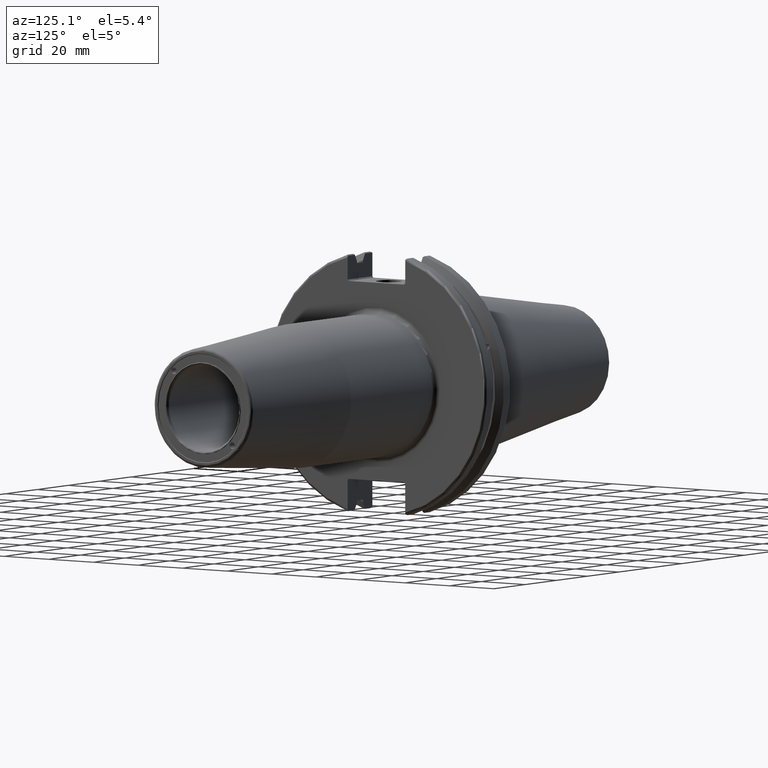
[diagram: clean part render]
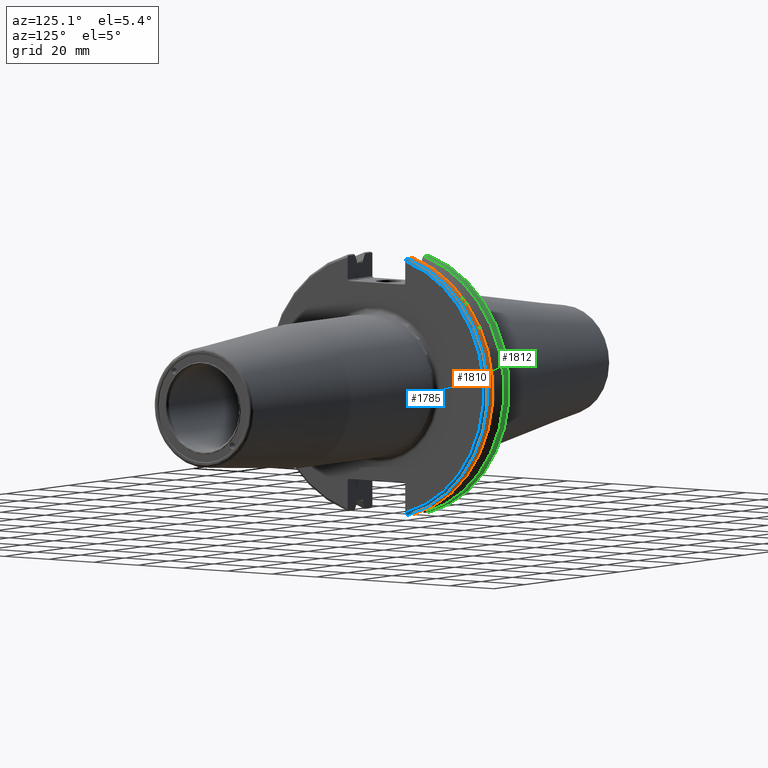
[diagram: same view with three faces highlighted in distinct colors, each labeled with its STEP entity id]
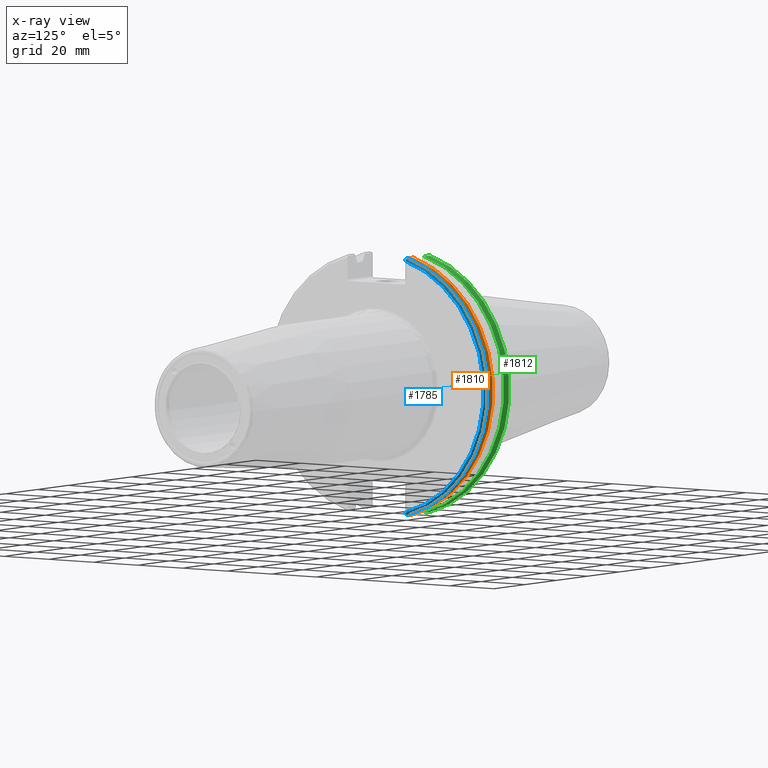
[diagram: x-ray of the same camera — body ghosted, the three highlighted faces saturated]
A machine part, auxiliary view with three faces highlighted in distinct colors.
The next image is the same camera in x-ray (body ghosted, the three faces saturated) — at least one of them is partly hidden behind the body in this view.
Their STEP definitions:

[orange] entity #1810 — the highlighted cylindrical surface (partial cylindrical patch) has radius 49.2125 mm, axis along (1, 0, 0).
#101=CYLINDRICAL_SURFACE('',#2031,49.2125);
#249=FACE_OUTER_BOUND('',#363,.T.);
#363=EDGE_LOOP('',(#1628,#1629,#1630,#1631));
#446=LINE('',#3382,#544);
#474=LINE('',#3582,#572);
#544=VECTOR('',#2421,10.);
#572=VECTOR('',#2523,10.);
#666=CIRCLE('',#1992,49.2125);
#681=CIRCLE('',#2032,49.2125);
#847=VERTEX_POINT('',#3356);
#848=VERTEX_POINT('',#3365);
#850=VERTEX_POINT('',#3378);
#883=VERTEX_POINT('',#3581);
#1081=EDGE_CURVE('',#847,#848,#666,.T.);
#1085=EDGE_CURVE('',#850,#847,#446,.T.);
#1145=EDGE_CURVE('',#848,#883,#474,.T.);
#1147=EDGE_CURVE('',#850,#883,#681,.T.);
#1628=ORIENTED_EDGE('',*,*,#1081,.F.);
#1629=ORIENTED_EDGE('',*,*,#1085,.F.);
#1630=ORIENTED_EDGE('',*,*,#1147,.T.);
#1631=ORIENTED_EDGE('',*,*,#1145,.F.);
#1810=ADVANCED_FACE('',(#249),#101,.T.);
#1992=AXIS2_PLACEMENT_3D('',#3366,#2416,#2417);
#2031=AXIS2_PLACEMENT_3D('',#3586,#2524,#2525);
#2032=AXIS2_PLACEMENT_3D('',#3587,#2526,#2527);
#2416=DIRECTION('center_axis',(1.,0.,0.));
#2417=DIRECTION('ref_axis',(0.,1.,-6.12323399573677E-17));
#2421=DIRECTION('',(1.,0.,0.));
#2523=DIRECTION('',(-1.,0.,0.));
#2524=DIRECTION('center_axis',(1.,0.,0.));
#2525=DIRECTION('ref_axis',(0.,1.,0.));
#2526=DIRECTION('center_axis',(1.,0.,0.));
#2527=DIRECTION('ref_axis',(0.,0.,-1.));
#3356=CARTESIAN_POINT('',(18.05,13.4317035994433,-47.3440544806494));
#3365=CARTESIAN_POINT('',(18.05,13.4317035994433,47.3440544806494));
#3366=CARTESIAN_POINT('Origin',(18.05,0.,0.));
#3378=CARTESIAN_POINT('',(14.6602090340487,13.4317035994433,-47.3440544806494));
#3382=CARTESIAN_POINT('',(16.8551045170244,13.4317035994433,-47.3440544806494));
#3581=CARTESIAN_POINT('',(14.6602090340487,13.4317035994433,47.3440544806494));
#3582=CARTESIAN_POINT('',(16.8551045170244,13.4317035994433,47.3440544806494));
#3586=CARTESIAN_POINT('Origin',(16.8551045170244,0.,0.));
#3587=CARTESIAN_POINT('Origin',(14.6602090340487,0.,0.));

[blue] entity #1785 — the highlighted toroidal blend (fillet) surface has major radius 48.2125 mm and minor (blend) radius 1 mm.
#53=B_SPLINE_CURVE_WITH_KNOTS('',3,(#3343,#3344,#3345,#3346,#3347,#3348),
 .UNSPECIFIED.,.F.,.F.,(4,2,4),(0.0976892167532868,0.112000071948293,0.150881870548587),
 .UNSPECIFIED.);
#54=B_SPLINE_CURVE_WITH_KNOTS('',3,(#3350,#3351,#3352,#3353,#3354,#3355),
 .UNSPECIFIED.,.F.,.F.,(4,2,4),(0.452859340315922,0.491741138916218,0.506051994111223),
 .UNSPECIFIED.);
#55=B_SPLINE_CURVE_WITH_KNOTS('',3,(#3357,#3358,#3359,#3360,#3361,#3362,
#3363,#3364),.UNSPECIFIED.,.F.,.F.,(4,2,2,4),(-0.104197480645881,-0.0778720357014994,
-0.0364336453281809,0.),.UNSPECIFIED.);
#56=B_SPLINE_CURVE_WITH_KNOTS('',3,(#3367,#3368,#3369,#3370,#3371,#3372,
#3373,#3374),.UNSPECIFIED.,.F.,.F.,(4,2,2,4),(0.,0.0364336453281816,0.0778720357014993,
0.104197480645882),.UNSPECIFIED.);
#73=TOROIDAL_SURFACE('',#1991,48.2125,1.);
#224=FACE_OUTER_BOUND('',#337,.T.);
#337=EDGE_LOOP('',(#1482,#1483,#1484,#1485,#1486,#1487));
#616=CIRCLE('',#1907,48.2125);
#666=CIRCLE('',#1992,49.2125);
#736=VERTEX_POINT('',#2707);
#737=VERTEX_POINT('',#2708);
#845=VERTEX_POINT('',#3342);
#846=VERTEX_POINT('',#3349);
#847=VERTEX_POINT('',#3356);
#848=VERTEX_POINT('',#3365);
#945=EDGE_CURVE('',#736,#737,#616,.T.);
#1078=EDGE_CURVE('',#845,#736,#53,.T.);
#1079=EDGE_CURVE('',#737,#846,#54,.T.);
#1080=EDGE_CURVE('',#846,#847,#55,.T.);
#1081=EDGE_CURVE('',#847,#848,#666,.T.);
#1082=EDGE_CURVE('',#848,#845,#56,.T.);
#1482=ORIENTED_EDGE('',*,*,#1078,.T.);
#1483=ORIENTED_EDGE('',*,*,#945,.T.);
#1484=ORIENTED_EDGE('',*,*,#1079,.T.);
#1485=ORIENTED_EDGE('',*,*,#1080,.T.);
#1486=ORIENTED_EDGE('',*,*,#1081,.T.);
#1487=ORIENTED_EDGE('',*,*,#1082,.T.);
#1785=ADVANCED_FACE('',(#224),#73,.T.);
#1907=AXIS2_PLACEMENT_3D('',#2709,#2195,#2196);
#1991=AXIS2_PLACEMENT_3D('',#3341,#2414,#2415);
#1992=AXIS2_PLACEMENT_3D('',#3366,#2416,#2417);
#2195=DIRECTION('center_axis',(-1.,0.,0.));
#2196=DIRECTION('ref_axis',(0.,1.,-6.12323399573677E-17));
#2414=DIRECTION('center_axis',(1.,0.,0.));
#2415=DIRECTION('ref_axis',(0.,0.,-1.));
#2416=DIRECTION('center_axis',(1.,0.,0.));
#2417=DIRECTION('ref_axis',(0.,1.,-6.12323399573677E-17));
#2707=CARTESIAN_POINT('',(19.05,12.95,46.4407434937254));
#2708=CARTESIAN_POINT('',(19.05,12.95,-46.4407434937254));
#2709=CARTESIAN_POINT('Origin',(19.05,0.,0.));
#3341=CARTESIAN_POINT('Origin',(18.05,0.,0.));
#3342=CARTESIAN_POINT('',(18.9055020570566,12.95,46.9780755322918));
#3343=CARTESIAN_POINT('Ctrl Pts',(18.9055020570566,12.95,46.9780755322918));
#3344=CARTESIAN_POINT('Ctrl Pts',(18.9315844351616,12.95,46.9333752207329));
#3345=CARTESIAN_POINT('Ctrl Pts',(18.9538432708766,12.95,46.887363294568));
#3346=CARTESIAN_POINT('Ctrl Pts',(19.0204646992875,12.95,46.7230464903732));
#3347=CARTESIAN_POINT('Ctrl Pts',(19.05,12.95,46.5703494890597));
#3348=CARTESIAN_POINT('Ctrl Pts',(19.05,12.95,46.4407434937254));
#3349=CARTESIAN_POINT('',(18.9055020570566,12.95,-46.9780755322918));
#3350=CARTESIAN_POINT('Ctrl Pts',(19.05,12.95,-46.4407434937254));
#3351=CARTESIAN_POINT('Ctrl Pts',(19.05,12.95,-46.5703494890597));
#3352=CARTESIAN_POINT('Ctrl Pts',(19.0204646992875,12.95,-46.7230464903732));
#3353=CARTESIAN_POINT('Ctrl Pts',(18.9538432708766,12.95,-46.887363294568));
#3354=CARTESIAN_POINT('Ctrl Pts',(18.9315844351616,12.95,-46.9333752207329));
#3355=CARTESIAN_POINT('Ctrl Pts',(18.9055020570566,12.95,-46.9780755322918));
#3356=CARTESIAN_POINT('',(18.05,13.4317035994433,-47.3440544806494));
#3357=CARTESIAN_POINT('Ctrl Pts',(18.9055020570566,12.95,-46.9780755322918));
#3358=CARTESIAN_POINT('Ctrl Pts',(18.8641312352177,13.0184763978125,-47.0301011349397));
#3359=CARTESIAN_POINT('Ctrl Pts',(18.811782280389,13.0847856162862,-47.0804802022157));
#3360=CARTESIAN_POINT('Ctrl Pts',(18.6710431007969,13.22546375702,-47.1873617743322));
#3361=CARTESIAN_POINT('Ctrl Pts',(18.54495745946,13.3111366376071,-47.2524525703658));
#3362=CARTESIAN_POINT('Ctrl Pts',(18.3128758164404,13.4037095171132,-47.3227857070234));
#3363=CARTESIAN_POINT('Ctrl Pts',(18.1714454844273,13.4317035994433,-47.3440544806494));
#3364=CARTESIAN_POINT('Ctrl Pts',(18.05,13.4317035994433,-47.3440544806494));
#3365=CARTESIAN_POINT('',(18.05,13.4317035994433,47.3440544806494));
#3366=CARTESIAN_POINT('Origin',(18.05,0.,0.));
#3367=CARTESIAN_POINT('Ctrl Pts',(18.05,13.4317035994433,47.3440544806494));
#3368=CARTESIAN_POINT('Ctrl Pts',(18.1714454844273,13.4317035994433,47.3440544806494));
#3369=CARTESIAN_POINT('Ctrl Pts',(18.3128758164404,13.4037095171132,47.3227857070234));
#3370=CARTESIAN_POINT('Ctrl Pts',(18.54495745946,13.3111366376071,47.2524525703658));
#3371=CARTESIAN_POINT('Ctrl Pts',(18.6710431007969,13.2254637570201,47.1873617743322));
#3372=CARTESIAN_POINT('Ctrl Pts',(18.811782280389,13.0847856162862,47.0804802022157));
#3373=CARTESIAN_POINT('Ctrl Pts',(18.8641312352177,13.0184763978125,47.0301011349397));
#3374=CARTESIAN_POINT('Ctrl Pts',(18.9055020570566,12.95,46.9780755322918));

[green] entity #1812 — the highlighted cylindrical surface (partial cylindrical patch) has radius 49.2125 mm, axis along (1, 0, 0).
#102=CYLINDRICAL_SURFACE('',#2034,49.2125);
#251=FACE_OUTER_BOUND('',#365,.T.);
#365=EDGE_LOOP('',(#1636,#1637,#1638,#1639));
#460=LINE('',#3528,#558);
#475=LINE('',#3589,#573);
#558=VECTOR('',#2463,10.);
#573=VECTOR('',#2530,10.);
#642=CIRCLE('',#1954,49.2125);
#670=CIRCLE('',#2006,49.2125);
#808=VERTEX_POINT('',#3239);
#809=VERTEX_POINT('',#3243);
#868=VERTEX_POINT('',#3502);
#869=VERTEX_POINT('',#3511);
#1032=EDGE_CURVE('',#808,#809,#642,.T.);
#1117=EDGE_CURVE('',#868,#869,#670,.T.);
#1120=EDGE_CURVE('',#869,#808,#460,.T.);
#1148=EDGE_CURVE('',#809,#868,#475,.T.);
#1636=ORIENTED_EDGE('',*,*,#1117,.F.);
#1637=ORIENTED_EDGE('',*,*,#1148,.F.);
#1638=ORIENTED_EDGE('',*,*,#1032,.F.);
#1639=ORIENTED_EDGE('',*,*,#1120,.F.);
#1812=ADVANCED_FACE('',(#251),#102,.T.);
#1954=AXIS2_PLACEMENT_3D('',#3244,#2321,#2322);
#2006=AXIS2_PLACEMENT_3D('',#3512,#2459,#2460);
#2034=AXIS2_PLACEMENT_3D('',#3590,#2531,#2532);
#2321=DIRECTION('center_axis',(1.,0.,0.));
#2322=DIRECTION('ref_axis',(0.,0.,-1.));
#2459=DIRECTION('center_axis',(-1.,0.,0.));
#2460=DIRECTION('ref_axis',(0.,1.,-6.12323399573677E-17));
#2463=DIRECTION('',(1.,0.,0.));
#2530=DIRECTION('',(-1.,0.,0.));
#2531=DIRECTION('center_axis',(1.,0.,0.));
#2532=DIRECTION('ref_axis',(0.,1.,0.));
#3239=CARTESIAN_POINT('',(7.60799096595127,13.4317035994433,-47.3440544806494));
#3243=CARTESIAN_POINT('',(7.60799096595127,13.4317035994433,47.3440544806494));
#3244=CARTESIAN_POINT('Origin',(7.60799096595127,0.,0.));
#3502=CARTESIAN_POINT('',(4.175,13.4317035994433,47.3440544806494));
#3511=CARTESIAN_POINT('',(4.175,13.4317035994433,-47.3440544806494));
#3512=CARTESIAN_POINT('Origin',(4.175,0.,0.));
#3528=CARTESIAN_POINT('',(5.39149548297563,13.4317035994433,-47.3440544806494));
#3589=CARTESIAN_POINT('',(5.39149548297563,13.4317035994433,47.3440544806494));
#3590=CARTESIAN_POINT('Origin',(5.39149548297563,0.,0.));